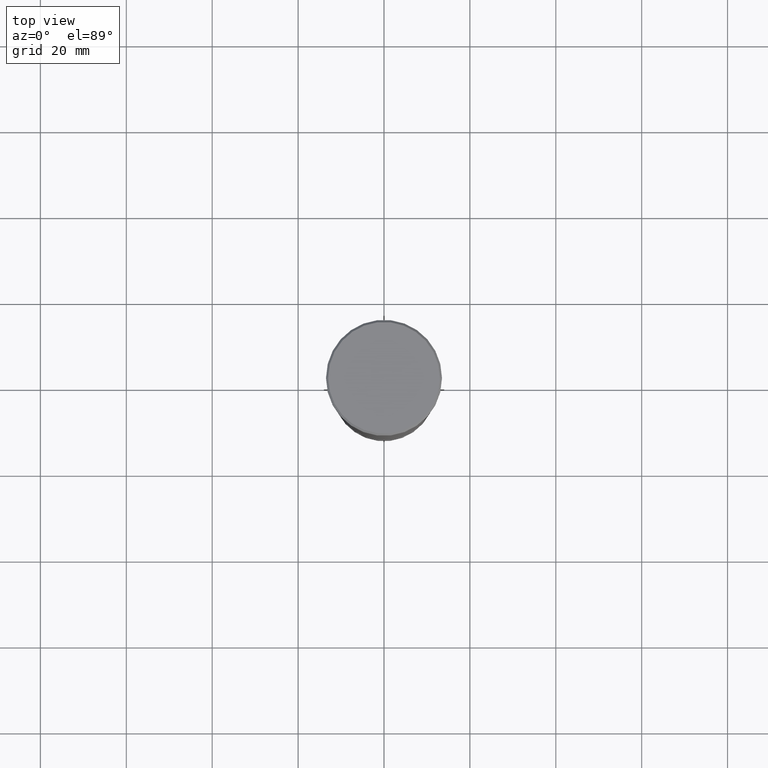
[diagram: clean part render]
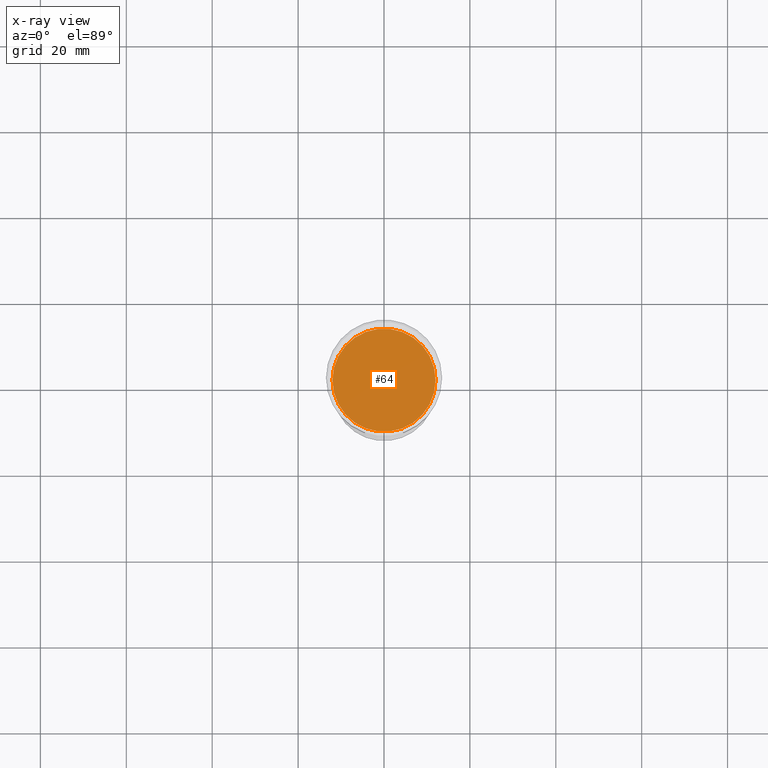
[diagram: x-ray — body ghosted, one internal face saturated and labeled with its STEP entity id]
A machine part, top view, then the same camera in x-ray: the body is ghosted and one INTERNAL B-rep face — a face not visible from any outside direction — is saturated and labeled: STEP entity #64.
In plain terms, the highlighted planar face has unit normal (0, 0, -1).
Its self-contained STEP definition (entity closure, byte-faithful):
#59 = ORIENTED_EDGE ( 'NONE', *, *, #1070, .T. ) ;
#64 = ADVANCED_FACE ( 'NONE', ( #175 ), #871, .T. ) ;
#71 = CARTESIAN_POINT ( 'NONE',  ( 0.000000000000000000, 0.000000000000000000, -33.00000000000000000 ) ) ;
#121 = EDGE_CURVE ( 'NONE', #691, #951, #300, .T. ) ;
#175 = FACE_OUTER_BOUND ( 'NONE', #211, .T. ) ;
#186 = AXIS2_PLACEMENT_3D ( 'NONE', #426, #788, #1138 ) ;
#211 = EDGE_LOOP ( 'NONE', ( #220, #59 ) ) ;
#220 = ORIENTED_EDGE ( 'NONE', *, *, #121, .T. ) ;
#243 = DIRECTION ( 'NONE',  ( 0.000000000000000000, 0.000000000000000000, -1.000000000000000000 ) ) ;
#300 = CIRCLE ( 'NONE', #774, 12.00000000000000178 ) ;
#343 = DIRECTION ( 'NONE',  ( -1.000000000000000000, 0.000000000000000000, 0.000000000000000000 ) ) ;
#426 = CARTESIAN_POINT ( 'NONE',  ( 0.000000000000000000, 0.000000000000000000, -33.00000000000000000 ) ) ;
#568 = DIRECTION ( 'NONE',  ( -1.000000000000000000, 0.000000000000000000, 0.000000000000000000 ) ) ;
#640 = CARTESIAN_POINT ( 'NONE',  ( 0.000000000000000000, 0.000000000000000000, -33.00000000000000000 ) ) ;
#691 = VERTEX_POINT ( 'NONE', #1068 ) ;
#774 = AXIS2_PLACEMENT_3D ( 'NONE', #71, #243, #343 ) ;
#788 = DIRECTION ( 'NONE',  ( 0.000000000000000000, 0.000000000000000000, -1.000000000000000000 ) ) ;
#845 = CARTESIAN_POINT ( 'NONE',  ( -12.00000000000000178, 1.469576158976824144E-15, -33.00000000000000000 ) ) ;
#871 = PLANE ( 'NONE',  #186 ) ;
#908 = AXIS2_PLACEMENT_3D ( 'NONE', #640, #1058, #568 ) ;
#951 = VERTEX_POINT ( 'NONE', #845 ) ;
#1001 = CIRCLE ( 'NONE', #908, 12.00000000000000178 ) ;
#1058 = DIRECTION ( 'NONE',  ( 0.000000000000000000, 0.000000000000000000, -1.000000000000000000 ) ) ;
#1068 = CARTESIAN_POINT ( 'NONE',  ( 12.00000000000000178, 0.000000000000000000, -33.00000000000000000 ) ) ;
#1070 = EDGE_CURVE ( 'NONE', #951, #691, #1001, .T. ) ;
#1138 = DIRECTION ( 'NONE',  ( -1.000000000000000000, 0.000000000000000000, -0.000000000000000000 ) ) ;